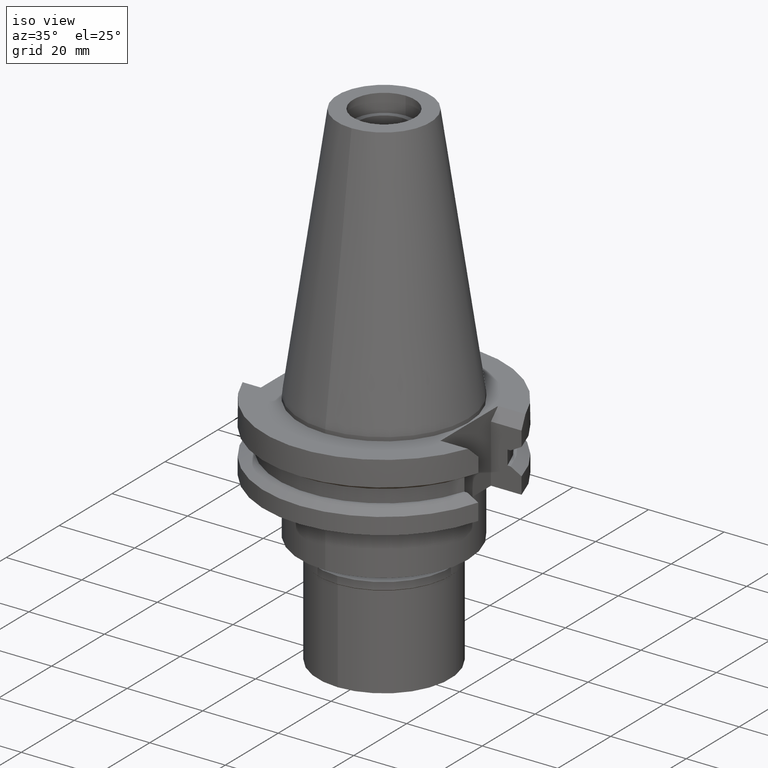
[diagram: clean part render]
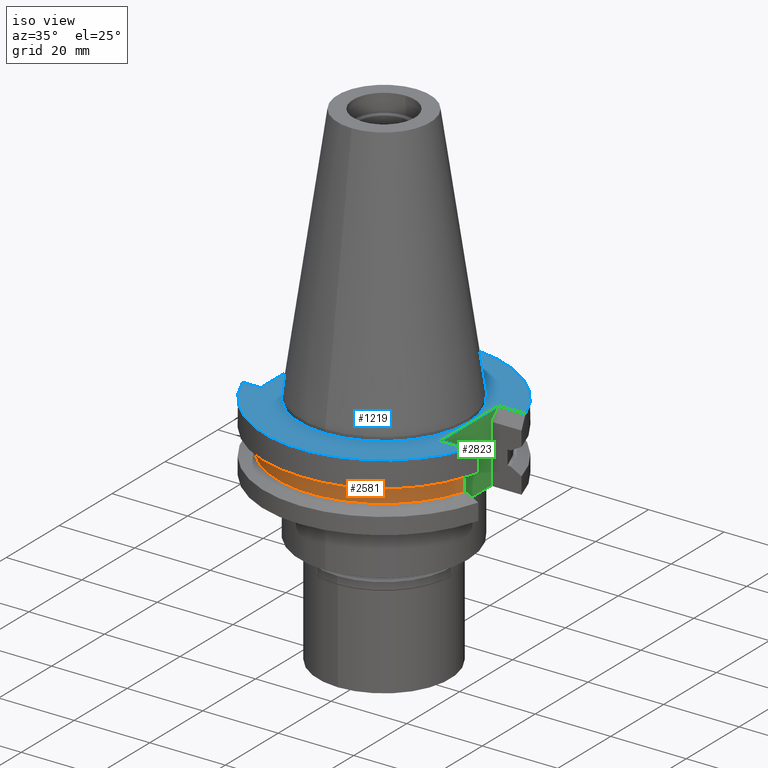
[diagram: same view with three faces highlighted in distinct colors, each labeled with its STEP entity id]
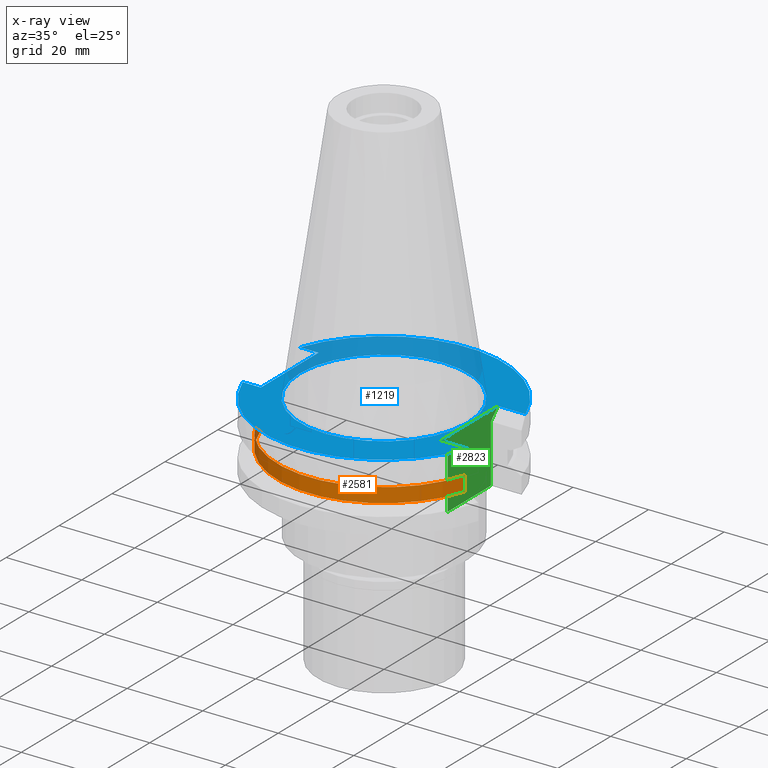
[diagram: x-ray of the same camera — body ghosted, the three highlighted faces saturated]
A machine part, iso view with three faces highlighted in distinct colors.
The next image is the same camera in x-ray (body ghosted, the three faces saturated) — at least one of them is partly hidden behind the body in this view.
Their STEP definitions:

[orange] entity #2581 — the highlighted cylindrical surface (partial cylindrical patch) has radius 28.18 mm, axis along (0, 0, 1).
#261 = CYLINDRICAL_SURFACE ( 'NONE', #1697, 28.17999999999999972 ) ;
#459 = DIRECTION ( 'NONE',  ( 0.0000000000000000000, 0.0000000000000000000, -1.000000000000000000 ) ) ;
#605 = DIRECTION ( 'NONE',  ( 0.0000000000000000000, 0.0000000000000000000, 1.000000000000000000 ) ) ;
#747 = FACE_OUTER_BOUND ( 'NONE', #3061, .T. ) ;
#793 = CARTESIAN_POINT ( 'NONE',  ( -26.96361066326000255, -8.189999999999999503, -9.207499999999999574 ) ) ;
#912 = ORIENTED_EDGE ( 'NONE', *, *, #1275, .F. ) ;
#979 = CARTESIAN_POINT ( 'NONE',  ( 0.0000000000000000000, 0.0000000000000000000, -9.207499999999999574 ) ) ;
#1002 = CIRCLE ( 'NONE', #2413, 28.17999999999999972 ) ;
#1149 = ORIENTED_EDGE ( 'NONE', *, *, #2419, .T. ) ;
#1172 = CARTESIAN_POINT ( 'NONE',  ( 0.0000000000000000000, 0.0000000000000000000, -58.53750000000000142 ) ) ;
#1275 = EDGE_CURVE ( 'NONE', #2708, #1845, #2778, .T. ) ;
#1294 = ORIENTED_EDGE ( 'NONE', *, *, #3019, .F. ) ;
#1432 = DIRECTION ( 'NONE',  ( 0.0000000000000000000, 1.000000000000000000, 0.0000000000000000000 ) ) ;
#1467 = ORIENTED_EDGE ( 'NONE', *, *, #2561, .T. ) ;
#1509 = CARTESIAN_POINT ( 'NONE',  ( -26.96361066326000255, -8.189999999999999503, -13.04749999999999943 ) ) ;
#1580 = VERTEX_POINT ( 'NONE', #2790 ) ;
#1615 = CARTESIAN_POINT ( 'NONE',  ( 0.0000000000000000000, 0.0000000000000000000, -13.04749999999999943 ) ) ;
#1697 = AXIS2_PLACEMENT_3D ( 'NONE', #1172, #1884, #1432 ) ;
#1789 = LINE ( 'NONE', #2715, #2939 ) ;
#1826 = CARTESIAN_POINT ( 'NONE',  ( -26.96361066326000255, -8.189999999999999503, -13.04749999999999943 ) ) ;
#1845 = VERTEX_POINT ( 'NONE', #793 ) ;
#1884 = DIRECTION ( 'NONE',  ( 0.0000000000000000000, 0.0000000000000000000, 1.000000000000000000 ) ) ;
#2046 = DIRECTION ( 'NONE',  ( -0.9568350128907829877, -0.2906316536550950236, 0.0000000000000000000 ) ) ;
#2063 = DIRECTION ( 'NONE',  ( 0.0000000000000000000, 0.0000000000000000000, 1.000000000000000000 ) ) ;
#2199 = DIRECTION ( 'NONE',  ( 0.0000000000000000000, 0.0000000000000000000, -1.000000000000000000 ) ) ;
#2299 = AXIS2_PLACEMENT_3D ( 'NONE', #1615, #2063, #2046 ) ;
#2350 = CIRCLE ( 'NONE', #2299, 28.17999999999999616 ) ;
#2413 = AXIS2_PLACEMENT_3D ( 'NONE', #979, #459, #2612 ) ;
#2419 = EDGE_CURVE ( 'NONE', #2708, #1580, #2350, .T. ) ;
#2561 = EDGE_CURVE ( 'NONE', #3013, #1845, #1002, .T. ) ;
#2581 = ADVANCED_FACE ( 'NONE', ( #747 ), #261, .T. ) ;
#2612 = DIRECTION ( 'NONE',  ( 0.0000000000000000000, -1.000000000000000000, 0.0000000000000000000 ) ) ;
#2708 = VERTEX_POINT ( 'NONE', #1509 ) ;
#2715 = CARTESIAN_POINT ( 'NONE',  ( 26.96361066326000255, -8.189999999999999503, -9.207499999999999574 ) ) ;
#2749 = VECTOR ( 'NONE', #605, 1000.000000000000000 ) ;
#2778 = LINE ( 'NONE', #1826, #2749 ) ;
#2790 = CARTESIAN_POINT ( 'NONE',  ( 26.96361066326000255, -8.189999999999999503, -13.04749999999999943 ) ) ;
#2939 = VECTOR ( 'NONE', #2199, 1000.000000000000000 ) ;
#2987 = CARTESIAN_POINT ( 'NONE',  ( 26.96361066326000255, -8.189999999999999503, -9.207499999999999574 ) ) ;
#3013 = VERTEX_POINT ( 'NONE', #2987 ) ;
#3019 = EDGE_CURVE ( 'NONE', #3013, #1580, #1789, .T. ) ;
#3061 = EDGE_LOOP ( 'NONE', ( #1294, #1467, #912, #1149 ) ) ;

[blue] entity #1219 — the highlighted planar face has unit normal (0, 0, 1).
#12 = DIRECTION ( 'NONE',  ( 1.000000000000000000, 5.632238998453000112E-14, 0.0000000000000000000 ) ) ;
#17 = LINE ( 'NONE', #968, #2716 ) ;
#19 = VERTEX_POINT ( 'NONE', #406 ) ;
#24 = DIRECTION ( 'NONE',  ( 0.0000000000000000000, -1.000000000000000000, 0.0000000000000000000 ) ) ;
#35 = VECTOR ( 'NONE', #2240, 1000.000000000000000 ) ;
#37 = DIRECTION ( 'NONE',  ( 0.0000000000000000000, -1.000000000000000000, 0.0000000000000000000 ) ) ;
#49 = AXIS2_PLACEMENT_3D ( 'NONE', #2358, #724, #2591 ) ;
#67 = CIRCLE ( 'NONE', #455, 22.22500000000000142 ) ;
#82 = VECTOR ( 'NONE', #1119, 1000.000000000000000 ) ;
#88 = AXIS2_PLACEMENT_3D ( 'NONE', #2908, #1703, #37 ) ;
#125 = ORIENTED_EDGE ( 'NONE', *, *, #3031, .F. ) ;
#280 = EDGE_LOOP ( 'NONE', ( #125, #1358 ) ) ;
#292 = ORIENTED_EDGE ( 'NONE', *, *, #1297, .T. ) ;
#341 = CIRCLE ( 'NONE', #49, 31.75000000000000000 ) ;
#345 = CARTESIAN_POINT ( 'NONE',  ( 22.57000000000000028, -10.89000000000000057, -1.000000000000000000 ) ) ;
#360 = CARTESIAN_POINT ( 'NONE',  ( 0.0000000000000000000, 0.0000000000000000000, -1.000000000000000000 ) ) ;
#365 = CARTESIAN_POINT ( 'NONE',  ( -24.98000000000000043, -10.89000000000000057, -1.000000000000000000 ) ) ;
#406 = CARTESIAN_POINT ( 'NONE',  ( -24.98000000000000043, 10.89000000000000057, -1.000000000000000000 ) ) ;
#455 = AXIS2_PLACEMENT_3D ( 'NONE', #520, #1019, #813 ) ;
#514 = EDGE_CURVE ( 'NONE', #19, #2726, #17, .T. ) ;
#520 = CARTESIAN_POINT ( 'NONE',  ( 0.0000000000000000000, 0.0000000000000000000, -1.000000000000000000 ) ) ;
#530 = CARTESIAN_POINT ( 'NONE',  ( 22.57000000000000028, 10.89000000000000057, -1.000000000000000000 ) ) ;
#559 = CARTESIAN_POINT ( 'NONE',  ( -24.98000000000000043, 10.89000000000000057, -1.000000000000000000 ) ) ;
#561 = ORIENTED_EDGE ( 'NONE', *, *, #1617, .T. ) ;
#724 = DIRECTION ( 'NONE',  ( 0.0000000000000000000, 0.0000000000000000000, -1.000000000000000000 ) ) ;
#751 = DIRECTION ( 'NONE',  ( -1.000000000000000000, -8.617768155387999131E-14, 0.0000000000000000000 ) ) ;
#759 = LINE ( 'NONE', #2655, #2701 ) ;
#763 = CARTESIAN_POINT ( 'NONE',  ( -29.82399034335000110, 10.89000000000000057, -1.000000000000000000 ) ) ;
#775 = EDGE_CURVE ( 'NONE', #1326, #1719, #1663, .T. ) ;
#813 = DIRECTION ( 'NONE',  ( 0.0000000000000000000, 1.000000000000000000, 0.0000000000000000000 ) ) ;
#820 = DIRECTION ( 'NONE',  ( 0.0000000000000000000, -1.000000000000000000, 0.0000000000000000000 ) ) ;
#854 = CARTESIAN_POINT ( 'NONE',  ( 0.0000000000000000000, 0.0000000000000000000, -1.000000000000000000 ) ) ;
#858 = EDGE_CURVE ( 'NONE', #2726, #1272, #341, .T. ) ;
#870 = CARTESIAN_POINT ( 'NONE',  ( 29.82399034335000110, 10.89000000000000057, -1.000000000000000000 ) ) ;
#883 = CARTESIAN_POINT ( 'NONE',  ( 29.82399034335000110, -10.89000000000000057, -1.000000000000000000 ) ) ;
#916 = LINE ( 'NONE', #1383, #1839 ) ;
#943 = CARTESIAN_POINT ( 'NONE',  ( 22.57000000000000028, -10.89000000000000057, -1.000000000000000000 ) ) ;
#968 = CARTESIAN_POINT ( 'NONE',  ( -24.98000000000000043, 10.89000000000000057, -1.000000000000000000 ) ) ;
#1010 = CARTESIAN_POINT ( 'NONE',  ( 0.0000000000000000000, 22.22500000000000142, -1.000000000000000000 ) ) ;
#1019 = DIRECTION ( 'NONE',  ( 0.0000000000000000000, 0.0000000000000000000, 1.000000000000000000 ) ) ;
#1075 = DIRECTION ( 'NONE',  ( 0.0000000000000000000, 0.0000000000000000000, -1.000000000000000000 ) ) ;
#1119 = DIRECTION ( 'NONE',  ( 0.0000000000000000000, -1.000000000000000000, 0.0000000000000000000 ) ) ;
#1155 = EDGE_CURVE ( 'NONE', #1925, #1326, #759, .T. ) ;
#1156 = VERTEX_POINT ( 'NONE', #1010 ) ;
#1219 = ADVANCED_FACE ( 'NONE', ( #1563, #2733 ), #2795, .T. ) ;
#1241 = AXIS2_PLACEMENT_3D ( 'NONE', #854, #1550, #2525 ) ;
#1255 = VECTOR ( 'NONE', #12, 1000.000000000000000 ) ;
#1272 = VERTEX_POINT ( 'NONE', #870 ) ;
#1297 = EDGE_CURVE ( 'NONE', #19, #2509, #2259, .T. ) ;
#1326 = VERTEX_POINT ( 'NONE', #345 ) ;
#1358 = ORIENTED_EDGE ( 'NONE', *, *, #2351, .F. ) ;
#1382 = VERTEX_POINT ( 'NONE', #1438 ) ;
#1383 = CARTESIAN_POINT ( 'NONE',  ( 22.57000000000000028, 10.89000000000000057, -1.000000000000000000 ) ) ;
#1438 = CARTESIAN_POINT ( 'NONE',  ( 0.0000000000000000000, -22.22500000000000142, -1.000000000000000000 ) ) ;
#1493 = AXIS2_PLACEMENT_3D ( 'NONE', #360, #1075, #820 ) ;
#1550 = DIRECTION ( 'NONE',  ( 0.0000000000000000000, 0.0000000000000000000, 1.000000000000000000 ) ) ;
#1563 = FACE_OUTER_BOUND ( 'NONE', #1835, .T. ) ;
#1613 = ORIENTED_EDGE ( 'NONE', *, *, #775, .F. ) ;
#1617 = EDGE_CURVE ( 'NONE', #1925, #1272, #916, .T. ) ;
#1618 = DIRECTION ( 'NONE',  ( 1.000000000000000000, -5.730190981034999030E-14, 0.0000000000000000000 ) ) ;
#1663 = LINE ( 'NONE', #943, #1255 ) ;
#1703 = DIRECTION ( 'NONE',  ( 0.0000000000000000000, 0.0000000000000000000, 1.000000000000000000 ) ) ;
#1719 = VERTEX_POINT ( 'NONE', #883 ) ;
#1748 = CARTESIAN_POINT ( 'NONE',  ( -29.82399034335000110, -10.89000000000000057, -1.000000000000000000 ) ) ;
#1835 = EDGE_LOOP ( 'NONE', ( #561, #2518, #2936, #292, #2221, #2928, #1613, #2034 ) ) ;
#1839 = VECTOR ( 'NONE', #1618, 1000.000000000000000 ) ;
#1925 = VERTEX_POINT ( 'NONE', #530 ) ;
#1944 = EDGE_CURVE ( 'NONE', #2509, #2872, #2964, .T. ) ;
#1959 = EDGE_CURVE ( 'NONE', #1719, #2872, #2862, .T. ) ;
#2034 = ORIENTED_EDGE ( 'NONE', *, *, #1155, .F. ) ;
#2192 = CIRCLE ( 'NONE', #88, 22.22500000000000142 ) ;
#2221 = ORIENTED_EDGE ( 'NONE', *, *, #1944, .T. ) ;
#2240 = DIRECTION ( 'NONE',  ( -1.000000000000000000, 8.617768155387999131E-14, 0.0000000000000000000 ) ) ;
#2259 = LINE ( 'NONE', #559, #82 ) ;
#2351 = EDGE_CURVE ( 'NONE', #1382, #1156, #2192, .T. ) ;
#2358 = CARTESIAN_POINT ( 'NONE',  ( 0.0000000000000000000, 0.0000000000000000000, -1.000000000000000000 ) ) ;
#2509 = VERTEX_POINT ( 'NONE', #365 ) ;
#2518 = ORIENTED_EDGE ( 'NONE', *, *, #858, .F. ) ;
#2525 = DIRECTION ( 'NONE',  ( 1.000000000000000000, 0.0000000000000000000, 0.0000000000000000000 ) ) ;
#2591 = DIRECTION ( 'NONE',  ( 0.0000000000000000000, 1.000000000000000000, 0.0000000000000000000 ) ) ;
#2655 = CARTESIAN_POINT ( 'NONE',  ( 22.57000000000000028, 10.89000000000000057, -1.000000000000000000 ) ) ;
#2701 = VECTOR ( 'NONE', #24, 1000.000000000000000 ) ;
#2716 = VECTOR ( 'NONE', #751, 1000.000000000000000 ) ;
#2722 = CARTESIAN_POINT ( 'NONE',  ( -24.98000000000000043, -10.89000000000000057, -1.000000000000000000 ) ) ;
#2726 = VERTEX_POINT ( 'NONE', #763 ) ;
#2733 = FACE_BOUND ( 'NONE', #280, .T. ) ;
#2795 = PLANE ( 'NONE',  #1241 ) ;
#2862 = CIRCLE ( 'NONE', #1493, 31.75000000000000000 ) ;
#2872 = VERTEX_POINT ( 'NONE', #1748 ) ;
#2908 = CARTESIAN_POINT ( 'NONE',  ( 0.0000000000000000000, 0.0000000000000000000, -1.000000000000000000 ) ) ;
#2928 = ORIENTED_EDGE ( 'NONE', *, *, #1959, .F. ) ;
#2936 = ORIENTED_EDGE ( 'NONE', *, *, #514, .F. ) ;
#2964 = LINE ( 'NONE', #2722, #35 ) ;
#3031 = EDGE_CURVE ( 'NONE', #1156, #1382, #67, .T. ) ;

[green] entity #2823 — the highlighted planar face has unit normal (1, 0, 0).
#24 = DIRECTION ( 'NONE',  ( 0.0000000000000000000, -1.000000000000000000, 0.0000000000000000000 ) ) ;
#79 = DIRECTION ( 'NONE',  ( 0.0000000000000000000, 1.000000000000000000, 0.0000000000000000000 ) ) ;
#175 = LINE ( 'NONE', #3084, #239 ) ;
#191 = VECTOR ( 'NONE', #563, 1000.000000000000000 ) ;
#197 = EDGE_CURVE ( 'NONE', #1374, #729, #2498, .T. ) ;
#239 = VECTOR ( 'NONE', #1196, 1000.000000000000000 ) ;
#336 = CARTESIAN_POINT ( 'NONE',  ( 22.57000000000000028, -8.189999999999999503, -19.05000000000000071 ) ) ;
#345 = CARTESIAN_POINT ( 'NONE',  ( 22.57000000000000028, -10.89000000000000057, -1.000000000000000000 ) ) ;
#362 = CARTESIAN_POINT ( 'NONE',  ( 22.57000000000000028, -8.189999999999999503, -3.700000000000000178 ) ) ;
#374 = VECTOR ( 'NONE', #2040, 1000.000000000000114 ) ;
#392 = CARTESIAN_POINT ( 'NONE',  ( 22.57000000000000028, 8.189999999999999503, -19.05000000000000071 ) ) ;
#409 = ORIENTED_EDGE ( 'NONE', *, *, #937, .F. ) ;
#417 = CARTESIAN_POINT ( 'NONE',  ( 22.57000000000000028, -8.189999999999999503, -19.05000000000000071 ) ) ;
#530 = CARTESIAN_POINT ( 'NONE',  ( 22.57000000000000028, 10.89000000000000057, -1.000000000000000000 ) ) ;
#563 = DIRECTION ( 'NONE',  ( 0.0000000000000000000, 0.0000000000000000000, 1.000000000000000000 ) ) ;
#570 = ORIENTED_EDGE ( 'NONE', *, *, #1260, .F. ) ;
#729 = VERTEX_POINT ( 'NONE', #362 ) ;
#759 = LINE ( 'NONE', #2655, #2701 ) ;
#777 = EDGE_LOOP ( 'NONE', ( #409, #1735, #808, #570, #926, #3076 ) ) ;
#798 = PLANE ( 'NONE',  #2459 ) ;
#808 = ORIENTED_EDGE ( 'NONE', *, *, #1155, .T. ) ;
#910 = LINE ( 'NONE', #2111, #2098 ) ;
#926 = ORIENTED_EDGE ( 'NONE', *, *, #197, .F. ) ;
#937 = EDGE_CURVE ( 'NONE', #1534, #2009, #910, .T. ) ;
#1155 = EDGE_CURVE ( 'NONE', #1925, #1326, #759, .T. ) ;
#1177 = CARTESIAN_POINT ( 'NONE',  ( 22.57000000000000028, 8.189999999999999503, -3.700000000000000178 ) ) ;
#1196 = DIRECTION ( 'NONE',  ( 0.0000000000000000000, -1.000000000000000000, 0.0000000000000000000 ) ) ;
#1246 = FACE_OUTER_BOUND ( 'NONE', #777, .T. ) ;
#1260 = EDGE_CURVE ( 'NONE', #729, #1326, #1768, .T. ) ;
#1326 = VERTEX_POINT ( 'NONE', #345 ) ;
#1374 = VERTEX_POINT ( 'NONE', #417 ) ;
#1513 = DIRECTION ( 'NONE',  ( 1.000000000000000000, 0.0000000000000000000, 0.0000000000000000000 ) ) ;
#1534 = VERTEX_POINT ( 'NONE', #1177 ) ;
#1569 = DIRECTION ( 'NONE',  ( 0.0000000000000000000, -0.7071067811865474617, -0.7071067811865474617 ) ) ;
#1735 = ORIENTED_EDGE ( 'NONE', *, *, #2400, .F. ) ;
#1768 = LINE ( 'NONE', #2990, #374 ) ;
#1925 = VERTEX_POINT ( 'NONE', #530 ) ;
#1940 = VECTOR ( 'NONE', #1569, 1000.000000000000114 ) ;
#2009 = VERTEX_POINT ( 'NONE', #392 ) ;
#2040 = DIRECTION ( 'NONE',  ( 0.0000000000000000000, -0.7071067811865474617, 0.7071067811865474617 ) ) ;
#2098 = VECTOR ( 'NONE', #3087, 1000.000000000000000 ) ;
#2111 = CARTESIAN_POINT ( 'NONE',  ( 22.57000000000000028, 8.189999999999999503, -3.700000000000000178 ) ) ;
#2158 = EDGE_CURVE ( 'NONE', #2009, #1374, #175, .T. ) ;
#2279 = CARTESIAN_POINT ( 'NONE',  ( 22.57000000000000028, 10.89000000000000057, -1.000000000000000000 ) ) ;
#2400 = EDGE_CURVE ( 'NONE', #1925, #1534, #2546, .T. ) ;
#2459 = AXIS2_PLACEMENT_3D ( 'NONE', #2972, #1513, #79 ) ;
#2498 = LINE ( 'NONE', #336, #191 ) ;
#2546 = LINE ( 'NONE', #2279, #1940 ) ;
#2655 = CARTESIAN_POINT ( 'NONE',  ( 22.57000000000000028, 10.89000000000000057, -1.000000000000000000 ) ) ;
#2701 = VECTOR ( 'NONE', #24, 1000.000000000000000 ) ;
#2823 = ADVANCED_FACE ( 'NONE', ( #1246 ), #798, .T. ) ;
#2972 = CARTESIAN_POINT ( 'NONE',  ( 22.57000000000000028, 0.0000000000000000000, 0.0000000000000000000 ) ) ;
#2990 = CARTESIAN_POINT ( 'NONE',  ( 22.57000000000000028, -8.189999999999999503, -3.700000000000000178 ) ) ;
#3076 = ORIENTED_EDGE ( 'NONE', *, *, #2158, .F. ) ;
#3084 = CARTESIAN_POINT ( 'NONE',  ( 22.57000000000000028, 8.189999999999999503, -19.05000000000000071 ) ) ;
#3087 = DIRECTION ( 'NONE',  ( 0.0000000000000000000, 0.0000000000000000000, -1.000000000000000000 ) ) ;